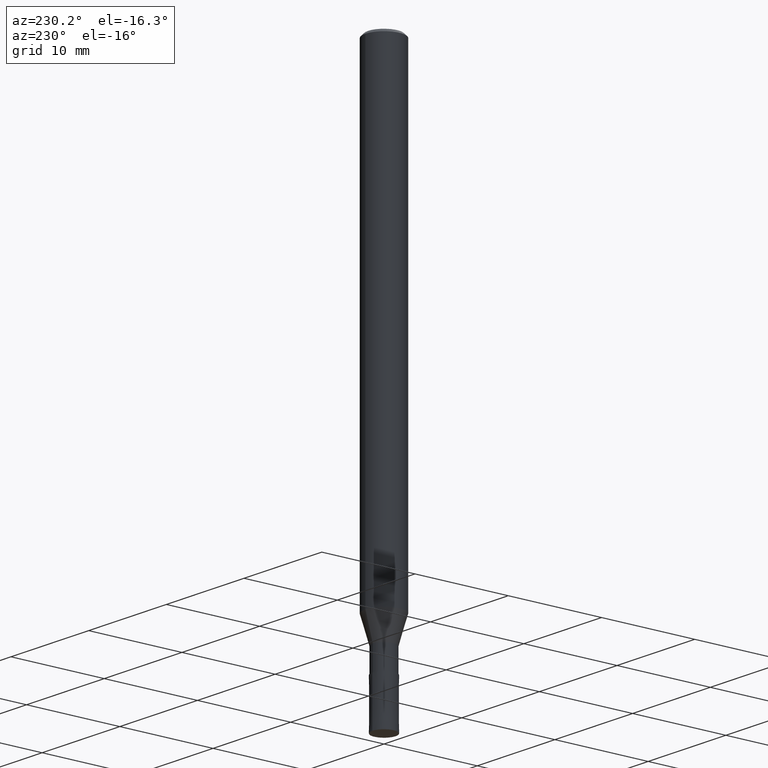
[diagram: clean part render]
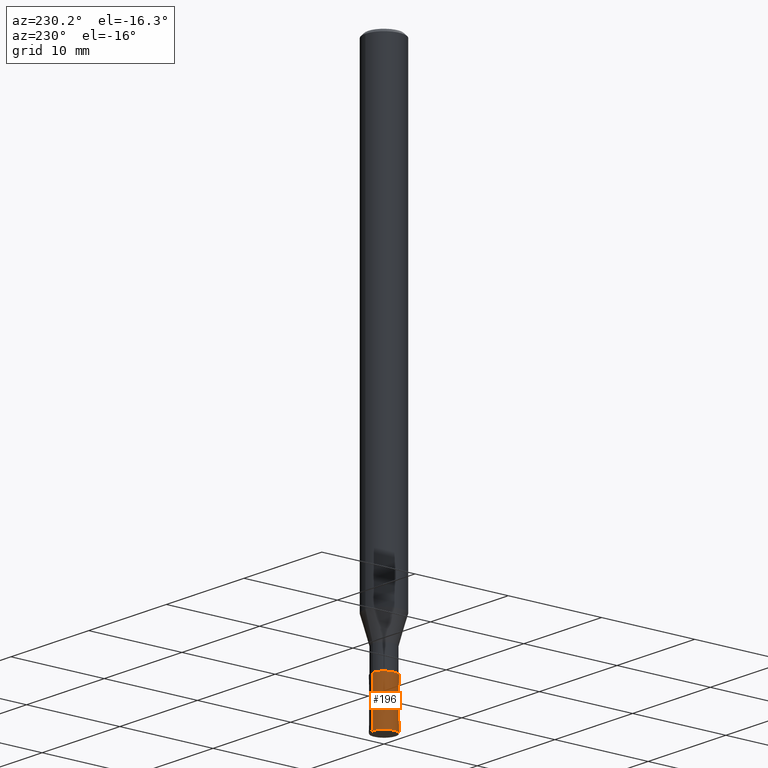
[diagram: same view with one face highlighted and labeled with its STEP entity id]
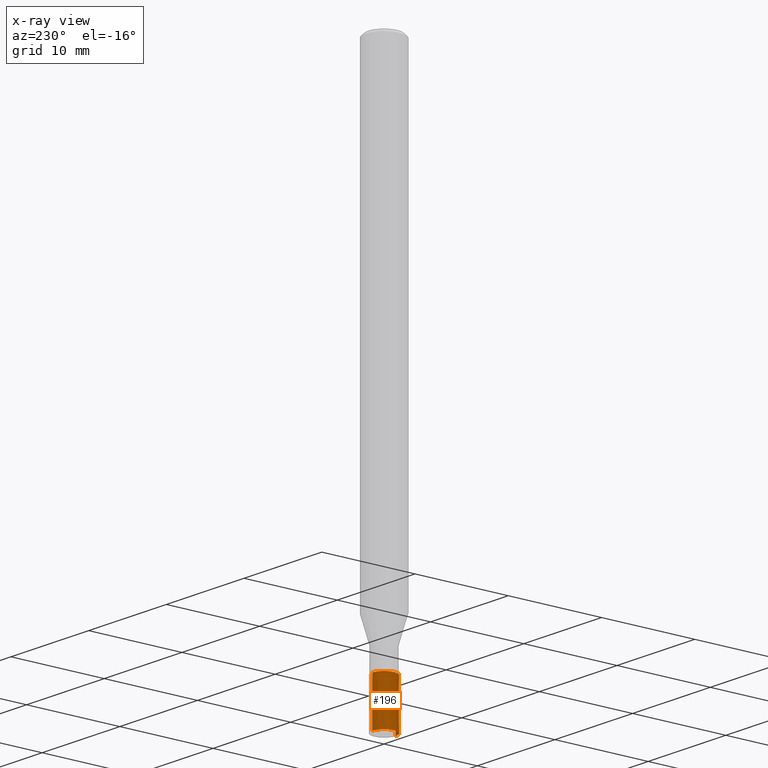
[diagram: x-ray of the same camera — body ghosted, the highlighted face saturated]
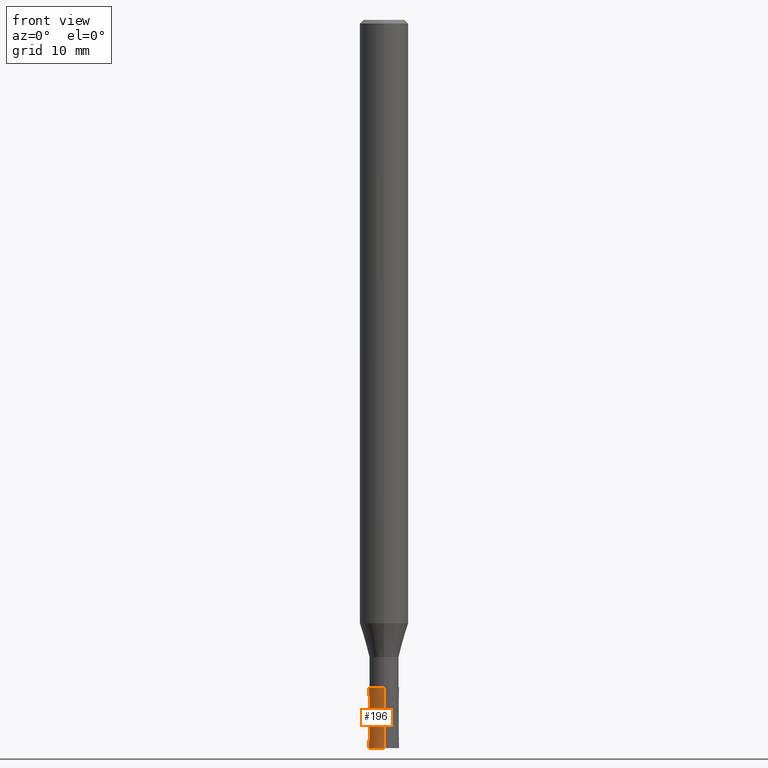
[diagram: same view with one face highlighted and labeled with its STEP entity id]
A machine part, auxiliary view. The second image highlights one B-rep face of the part: STEP entity #196.
The next image is the same camera in x-ray: the body ghosted, the highlighted face saturated — about 0% of this face is hidden behind the body in this view.
A second angle (front view) of the same face is appended — the face is thin or edge-on in the first view.
In plain terms, the highlighted conical surface has half-angle 0.001 deg.
Its self-contained STEP definition (entity closure, byte-faithful):
#106=VERTEX_POINT('',#245);
#118=VERTEX_POINT('',#258);
#130=VERTEX_POINT('',#271);
#140=EDGE_CURVE('',#200,#130,#284,.T.);
#142=EDGE_CURVE('',#200,#118,#286,.T.);
#158=EDGE_CURVE('',#118,#106,#304,.T.);
#194=EDGE_CURVE('',#106,#130,#345,.T.);
#196=ADVANCED_FACE('',(#347),#348,.T.);
#200=VERTEX_POINT('',#352);
#245=CARTESIAN_POINT('',(0.0,1.2499,-55.0));
#258=CARTESIAN_POINT('',(1.53063548164259E-016,-1.2499,-55.0));
#271=CARTESIAN_POINT('',(0.0,1.25,-60.0));
#284=CIRCLE('',#441,1.25);
#286=LINE('',#444,#445);
#304=CIRCLE('',#470,1.2499);
#345=LINE('',#519,#520);
#347=FACE_OUTER_BOUND('',#522,.T.);
#348=CONICAL_SURFACE('',#523,1.24995,1.99999999973311E-005);
#352=CARTESIAN_POINT('',(1.53075794227797E-016,-1.25,-60.0));
#441=AXIS2_PLACEMENT_3D('',#614,#615,#616);
#444=CARTESIAN_POINT('',(1.53069671196028E-016,-1.24995,-57.5));
#445=VECTOR('',#617,1.0);
#470=AXIS2_PLACEMENT_3D('',#642,#643,#644);
#519=CARTESIAN_POINT('',(-1.53069671196028E-016,1.24995,-57.5));
#520=VECTOR('',#690,1.0);
#522=EDGE_LOOP('',(#692,#693,#694,#695));
#523=AXIS2_PLACEMENT_3D('',#696,#697,#698);
#614=CARTESIAN_POINT('',(0.0,0.0,-60.0));
#615=DIRECTION('',(0.0,0.0,-1.0));
#616=DIRECTION('',(0.0,1.0,0.0));
#617=DIRECTION('',(-2.44921270715464E-021,1.99999999959978E-005,0.9999999998));
#642=CARTESIAN_POINT('',(0.0,0.0,-55.0));
#643=DIRECTION('',(0.0,0.0,-1.0));
#644=DIRECTION('',(0.0,1.0,0.0));
#690=DIRECTION('',(-2.44921270715464E-021,1.99999999959978E-005,-0.9999999998));
#692=ORIENTED_EDGE('',*,*,#194,.T.);
#693=ORIENTED_EDGE('',*,*,#140,.F.);
#694=ORIENTED_EDGE('',*,*,#142,.T.);
#695=ORIENTED_EDGE('',*,*,#158,.T.);
#696=CARTESIAN_POINT('',(0.0,0.0,-57.5));
#697=DIRECTION('',(0.0,-0.0,-1.0));
#698=DIRECTION('',(0.0,1.0,0.0));